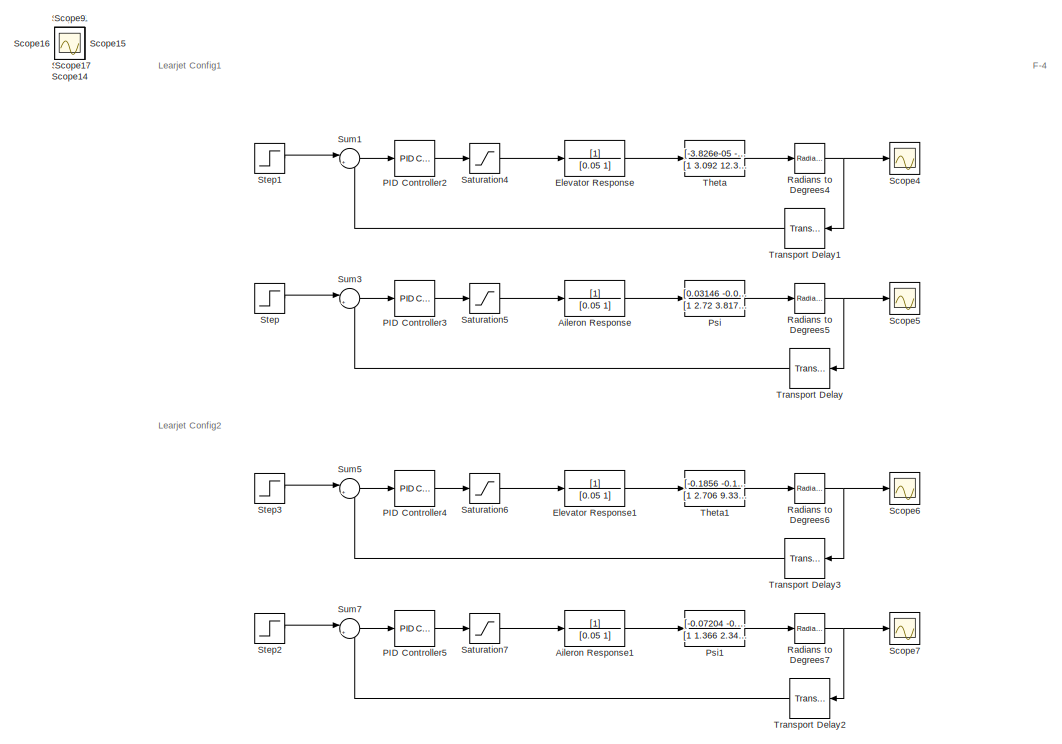
[diagram: root canvas - part 1/3, middle left region]
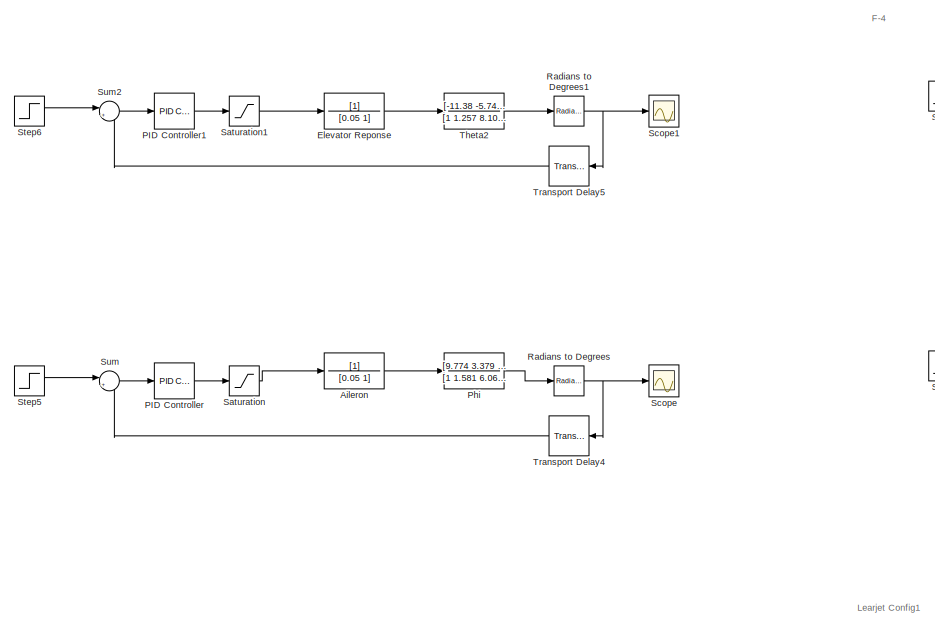
[diagram: root canvas - part 2/3, central region]
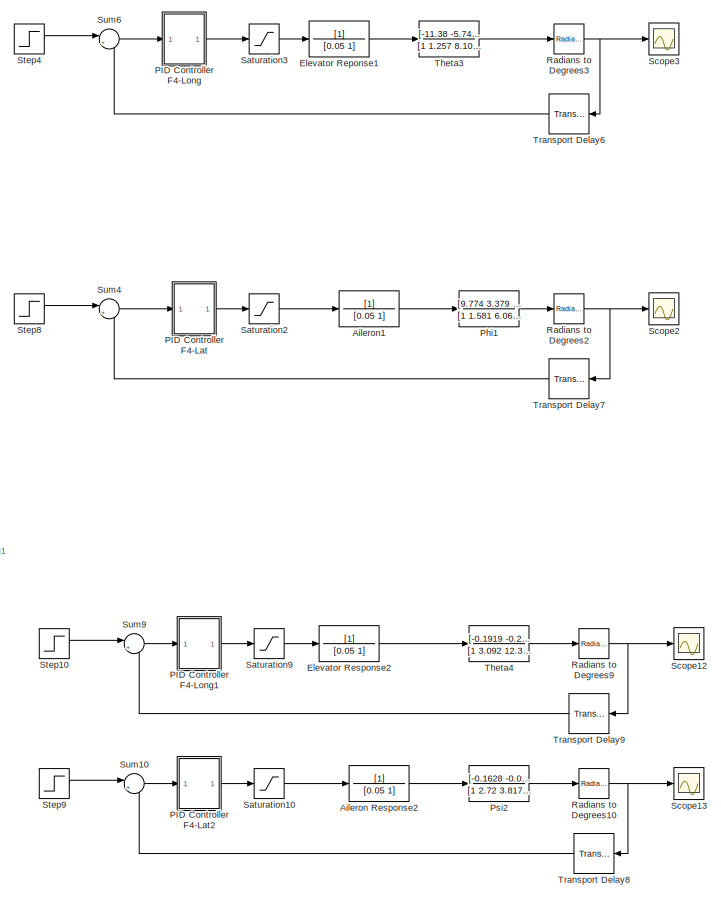
[diagram: root canvas - part 3/3, right side, full height]
MODEL slx_a774afb46f4c
KIND model
CONFIG AbsTol = auto
CONFIG EnableMultiTasking = off
CONFIG FixedStep = auto
CONFIG MaxStep = auto
CONFIG MinStep = auto
CONFIG RelTol = 1e-3
CONFIG SampleTimeConstraint = Unconstrained
CONFIG SolverName = VariableStepAuto
CONFIG StartTime = 0.0
CONFIG StopTime = 10
BLOCK [TransferFcn] Aileron
  Denominator = [0.05 1]
BLOCK [TransferFcn] Aileron Response
  Denominator = [0.05 1]
BLOCK [TransferFcn] Aileron Response1
  Denominator = [0.05 1]
BLOCK [TransferFcn] Aileron Response2
  Denominator = [0.05 1]
BLOCK [TransferFcn] Aileron1
  Denominator = [0.05 1]
BLOCK [TransferFcn] Elevator Reponse
  Denominator = [0.05 1]
BLOCK [TransferFcn] Elevator Reponse1
  Denominator = [0.05 1]
BLOCK [TransferFcn] Elevator Response
  Denominator = [0.05 1]
BLOCK [TransferFcn] Elevator Response1
  Denominator = [0.05 1]
BLOCK [TransferFcn] Elevator Response2
  Denominator = [0.05 1]
BLOCK [Reference] PID Controller  REF=slpidlib/PID Controller
  LibrarySourceBlock = simulink/Continuous/PID Controller
  SourceBlock = slpidlib/PID Controller
  SourceType = PID 1dof
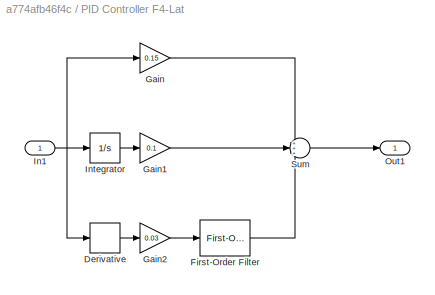
BLOCK [SubSystem] PID Controller F4-Lat
BLOCK [Derivative] PID Controller F4-Lat/Derivative
BLOCK [Reference] PID Controller F4-Lat/First-Order Filter  REF=spsFirstOrderFilterLib/First-Order
Filter
  LibrarySourceBlock = sps_lib/Control/Filters/First-Order\nFilter
  SourceBlock = spsFirstOrderFilterLib/First-Order\nFilter
  SourceType = First-Order Filter
BLOCK [Gain] PID Controller F4-Lat/Gain
  Gain = 0.15
BLOCK [Gain] PID Controller F4-Lat/Gain1
  Gain = 0.1
BLOCK [Gain] PID Controller F4-Lat/Gain2
  Gain = 0.03
BLOCK [Inport] PID Controller F4-Lat/In1
BLOCK [Integrator] PID Controller F4-Lat/Integrator
BLOCK [Outport] PID Controller F4-Lat/Out1
BLOCK [Sum] PID Controller F4-Lat/Sum
  Inputs = +++
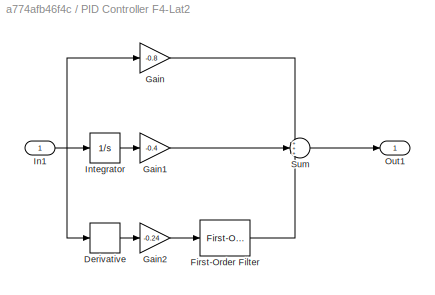
BLOCK [SubSystem] PID Controller F4-Lat2
BLOCK [Derivative] PID Controller F4-Lat2/Derivative
BLOCK [Reference] PID Controller F4-Lat2/First-Order Filter  REF=spsFirstOrderFilterLib/First-Order
Filter
  LibrarySourceBlock = sps_lib/Control/Filters/First-Order\nFilter
  SourceBlock = spsFirstOrderFilterLib/First-Order\nFilter
  SourceType = First-Order Filter
BLOCK [Gain] PID Controller F4-Lat2/Gain
  Gain = -0.8
BLOCK [Gain] PID Controller F4-Lat2/Gain1
  Gain = -0.4
BLOCK [Gain] PID Controller F4-Lat2/Gain2
  Gain = -0.24
BLOCK [Inport] PID Controller F4-Lat2/In1
BLOCK [Integrator] PID Controller F4-Lat2/Integrator
BLOCK [Outport] PID Controller F4-Lat2/Out1
BLOCK [Sum] PID Controller F4-Lat2/Sum
  Inputs = +++
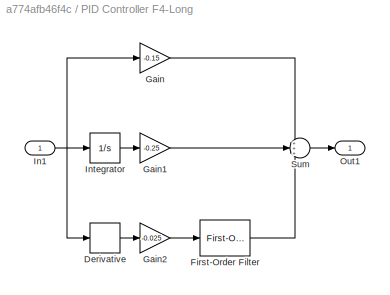
BLOCK [SubSystem] PID Controller F4-Long
BLOCK [Derivative] PID Controller F4-Long/Derivative
BLOCK [Reference] PID Controller F4-Long/First-Order Filter  REF=spsFirstOrderFilterLib/First-Order
Filter
  LibrarySourceBlock = sps_lib/Control/Filters/First-Order\nFilter
  SourceBlock = spsFirstOrderFilterLib/First-Order\nFilter
  SourceType = First-Order Filter
BLOCK [Gain] PID Controller F4-Long/Gain
  Gain = -0.15
BLOCK [Gain] PID Controller F4-Long/Gain1
  Gain = -0.25
BLOCK [Gain] PID Controller F4-Long/Gain2
  Gain = -0.025
BLOCK [Inport] PID Controller F4-Long/In1
BLOCK [Integrator] PID Controller F4-Long/Integrator
BLOCK [Outport] PID Controller F4-Long/Out1
BLOCK [Sum] PID Controller F4-Long/Sum
  Inputs = +++
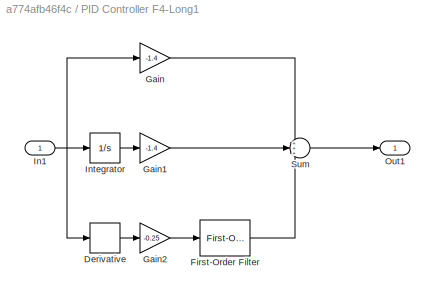
BLOCK [SubSystem] PID Controller F4-Long1
BLOCK [Derivative] PID Controller F4-Long1/Derivative
BLOCK [Reference] PID Controller F4-Long1/First-Order Filter  REF=spsFirstOrderFilterLib/First-Order
Filter
  LibrarySourceBlock = sps_lib/Control/Filters/First-Order\nFilter
  SourceBlock = spsFirstOrderFilterLib/First-Order\nFilter
  SourceType = First-Order Filter
BLOCK [Gain] PID Controller F4-Long1/Gain
  Gain = -1.4
BLOCK [Gain] PID Controller F4-Long1/Gain1
  Gain = -1.4
BLOCK [Gain] PID Controller F4-Long1/Gain2
  Gain = -0.25
BLOCK [Inport] PID Controller F4-Long1/In1
BLOCK [Integrator] PID Controller F4-Long1/Integrator
BLOCK [Outport] PID Controller F4-Long1/Out1
BLOCK [Sum] PID Controller F4-Long1/Sum
  Inputs = +++
BLOCK [Reference] PID Controller1  REF=slpidlib/PID Controller
  LibrarySourceBlock = simulink/Continuous/PID Controller
  SourceBlock = slpidlib/PID Controller
  SourceType = PID 1dof
BLOCK [Reference] PID Controller2  REF=slpidlib/PID Controller
  LibrarySourceBlock = simulink/Continuous/PID Controller
  SourceBlock = slpidlib/PID Controller
  SourceType = PID 1dof
BLOCK [Reference] PID Controller3  REF=slpidlib/PID Controller
  LibrarySourceBlock = simulink/Continuous/PID Controller
  SourceBlock = slpidlib/PID Controller
  SourceType = PID 1dof
BLOCK [Reference] PID Controller4  REF=slpidlib/PID Controller
  LibrarySourceBlock = simulink/Continuous/PID Controller
  SourceBlock = slpidlib/PID Controller
  SourceType = PID 1dof
BLOCK [Reference] PID Controller5  REF=slpidlib/PID Controller
  LibrarySourceBlock = simulink/Continuous/PID Controller
  SourceBlock = slpidlib/PID Controller
  SourceType = PID 1dof
BLOCK [TransferFcn] Phi
  Denominator = [1 1.581 6.068 7.758 0.1007]
  Numerator = [9.774 3.379 50.2]
BLOCK [TransferFcn] Phi1
  Denominator = [1 1.581 6.068 7.758 0.1007]
  Numerator = [9.774 3.379 50.2]
BLOCK [TransferFcn] Psi
  Denominator = [1 2.72 3.817 7.646 0.002118]
  Numerator = [0.03146 -0.02702 -0.2334]
BLOCK [TransferFcn] Psi1
  Denominator = [1 1.366 2.345 2.45 -0.04924]
  Numerator = [-0.07204 -0.02628 0.1395]
BLOCK [TransferFcn] Psi2
  Denominator = [1 2.72 3.817 7.646 0.002118]
  Numerator = [-0.1628 -0.08063 -0.4614]
BLOCK [Reference] Radians to Degrees  REF=simulink_extras/Transformations/Radians
to Degrees
  SourceBlock = simulink_extras/Transformations/Radians\nto Degrees
  SourceType = RadiansToDegrees
BLOCK [Reference] Radians to Degrees1  REF=simulink_extras/Transformations/Radians
to Degrees
  SourceBlock = simulink_extras/Transformations/Radians\nto Degrees
  SourceType = RadiansToDegrees
BLOCK [Reference] Radians to Degrees10  REF=simulink_extras/Transformations/Radians
to Degrees
  SourceBlock = simulink_extras/Transformations/Radians\nto Degrees
  SourceType = RadiansToDegrees
BLOCK [Reference] Radians to Degrees2  REF=simulink_extras/Transformations/Radians
to Degrees
  SourceBlock = simulink_extras/Transformations/Radians\nto Degrees
  SourceType = RadiansToDegrees
BLOCK [Reference] Radians to Degrees3  REF=simulink_extras/Transformations/Radians
to Degrees
  SourceBlock = simulink_extras/Transformations/Radians\nto Degrees
  SourceType = RadiansToDegrees
BLOCK [Reference] Radians to Degrees4  REF=simulink_extras/Transformations/Radians
to Degrees
  SourceBlock = simulink_extras/Transformations/Radians\nto Degrees
  SourceType = RadiansToDegrees
BLOCK [Reference] Radians to Degrees5  REF=simulink_extras/Transformations/Radians
to Degrees
  SourceBlock = simulink_extras/Transformations/Radians\nto Degrees
  SourceType = RadiansToDegrees
BLOCK [Reference] Radians to Degrees6  REF=simulink_extras/Transformations/Radians
to Degrees
  SourceBlock = simulink_extras/Transformations/Radians\nto Degrees
  SourceType = RadiansToDegrees
BLOCK [Reference] Radians to Degrees7  REF=simulink_extras/Transformations/Radians
to Degrees
  SourceBlock = simulink_extras/Transformations/Radians\nto Degrees
  SourceType = RadiansToDegrees
BLOCK [Reference] Radians to Degrees9  REF=simulink_extras/Transformations/Radians
to Degrees
  SourceBlock = simulink_extras/Transformations/Radians\nto Degrees
  SourceType = RadiansToDegrees
BLOCK [Saturate] Saturation
  LowerLimit = -15
  UpperLimit = 15
BLOCK [Saturate] Saturation1
  LowerLimit = -15
  UpperLimit = 15
BLOCK [Saturate] Saturation10
  LowerLimit = -15
  UpperLimit = 15
BLOCK [Saturate] Saturation2
  LowerLimit = -15
  UpperLimit = 15
BLOCK [Saturate] Saturation3
  LowerLimit = -15
  UpperLimit = 15
BLOCK [Saturate] Saturation4
  LowerLimit = -15
  UpperLimit = 15
BLOCK [Saturate] Saturation5
  LowerLimit = -15
  UpperLimit = 15
BLOCK [Saturate] Saturation6
  LowerLimit = -15
  UpperLimit = 15
BLOCK [Saturate] Saturation7
  LowerLimit = -15
  UpperLimit = 15
BLOCK [Saturate] Saturation9
  LowerLimit = -15
  UpperLimit = 15
BLOCK [Scope] Scope
  Floating = off
  NumInputPorts = 1
  ScopeSpecificationString = Simulink.scopes.TimeScopeBlockCfg('CurrentConfiguration', extmgr.ConfigurationSet(extmgr.Configuration('Core','General UI',true),extmgr.Configuration('Core','Source UI',true),extmgr.Configuration('Sources','WiredSimulink',true),extmgr.Configuration('Visuals','Time Domain',true,'SerializedDisplays',{struct('MinYLimReal','-0.13635','MaxYLimReal','1.22717','YLabelReal','','MinYLimMag','0.00000','MaxY...<+1367ch>
BLOCK [Scope] Scope1
  Floating = off
  NumInputPorts = 1
  ScopeSpecificationString = Simulink.scopes.TimeScopeBlockCfg('CurrentConfiguration', extmgr.ConfigurationSet(extmgr.Configuration('Core','General UI',true),extmgr.Configuration('Core','Source UI',true),extmgr.Configuration('Sources','WiredSimulink',true,'DataLoggingVariableName','ScopeData1'),extmgr.Configuration('Visuals','Time Domain',true,'SerializedDisplays',{struct('MinYLimReal','-0.13081','MaxYLimReal','1.17731','YLab...<+1407ch>
BLOCK [Scope] Scope10
  Floating = off
  IOType = viewer
  NumInputPorts = 1
  ScopeSpecificationString = Simulink.scopes.TimeScopeBlockCfg('CurrentConfiguration', extmgr.ConfigurationSet(extmgr.Configuration('Core','General UI',true),extmgr.Configuration('Core','Source UI',true),extmgr.Configuration('Sources','WiredSimulink',true,'DataLoggingVariableName','ScopeData2'),extmgr.Configuration('Visuals','Time Domain',true,'SerializedDisplays',{struct('MinYLimReal','-2.29931','MaxYLimReal','16.92215','YLa...<+1517ch>
BLOCK [Scope] Scope11
  Floating = off
  IOType = viewer
  NumInputPorts = 1
  ScopeSpecificationString = Simulink.scopes.TimeScopeBlockCfg('CurrentConfiguration', extmgr.ConfigurationSet(extmgr.Configuration('Core','General UI',true),extmgr.Configuration('Core','Source UI',true),extmgr.Configuration('Sources','WiredSimulink',true,'DataLoggingVariableName','ScopeData1'),extmgr.Configuration('Visuals','Time Domain',true,'SerializedDisplays',{struct('MinYLimReal','-0.1639','MaxYLimReal','0.70527','YLabe...<+1486ch>
BLOCK [Scope] Scope12
  Floating = off
  NumInputPorts = 1
  ScopeSpecificationString = Simulink.scopes.TimeScopeBlockCfg('CurrentConfiguration', extmgr.ConfigurationSet(extmgr.Configuration('Core','General UI',true),extmgr.Configuration('Core','Source UI',true),extmgr.Configuration('Sources','WiredSimulink',true,'DataLoggingVariableName','ScopeData1'),extmgr.Configuration('Visuals','Time Domain',true,'SerializedDisplays',{struct('MinYLimReal','-0.14349','MaxYLimReal','1.2914','YLabe...<+1492ch>
BLOCK [Scope] Scope13
  Floating = off
  NumInputPorts = 1
  ScopeSpecificationString = Simulink.scopes.TimeScopeBlockCfg('CurrentConfiguration', extmgr.ConfigurationSet(extmgr.Configuration('Core','General UI',true),extmgr.Configuration('Core','Source UI',true),extmgr.Configuration('Sources','WiredSimulink',true,'DataLoggingVariableName','ScopeData2'),extmgr.Configuration('Visuals','Time Domain',true,'SerializedDisplays',{struct('MinYLimReal','-0.14904','MaxYLimReal','1.34138','YLab...<+1497ch>
BLOCK [Scope] Scope14
  Floating = off
  IOType = viewer
  NumInputPorts = 1
  ScopeSpecificationString = Simulink.scopes.TimeScopeBlockCfg('CurrentConfiguration', extmgr.ConfigurationSet(extmgr.Configuration('Core','General UI',true),extmgr.Configuration('Core','Source UI',true),extmgr.Configuration('Sources','WiredSimulink',true,'DataLoggingVariableName','ScopeData3'),extmgr.Configuration('Visuals','Time Domain',true,'SerializedDisplays',{struct('MinYLimReal','-1.38233','MaxYLimReal','0.16908','YLab...<+1495ch>
BLOCK [Scope] Scope15
  Floating = off
  IOType = viewer
  NumInputPorts = 1
  ScopeSpecificationString = Simulink.scopes.TimeScopeBlockCfg('CurrentConfiguration', extmgr.ConfigurationSet(extmgr.Configuration('Core','General UI',true),extmgr.Configuration('Core','Source UI',true),extmgr.Configuration('Sources','WiredSimulink',true,'DataLoggingVariableName','ScopeData4'),extmgr.Configuration('Visuals','Time Domain',true,'SerializedDisplays',{struct('MinYLimReal','-0.80798','MaxYLimReal','0.16244','YLab...<+1494ch>
BLOCK [Scope] Scope16
  Floating = off
  IOType = viewer
  NumInputPorts = 1
  ScopeSpecificationString = Simulink.scopes.TimeScopeBlockCfg('CurrentConfiguration', extmgr.ConfigurationSet(extmgr.Configuration('Core','General UI',true),extmgr.Configuration('Core','Source UI',true),extmgr.Configuration('Sources','WiredSimulink',true,'DataLoggingVariableName','ScopeData1'),extmgr.Configuration('Visuals','Time Domain',true,'SerializedDisplays',{struct('MinYLimReal','-0.3339','MaxYLimReal','0.0559','YLabel...<+1509ch>
BLOCK [Scope] Scope17
  Floating = off
  IOType = viewer
  NumInputPorts = 1
  ScopeSpecificationString = Simulink.scopes.TimeScopeBlockCfg('CurrentConfiguration', extmgr.ConfigurationSet(extmgr.Configuration('Core','General UI',true),extmgr.Configuration('Core','Source UI',true),extmgr.Configuration('Sources','WiredSimulink',true,'DataLoggingVariableName','ScopeData2'),extmgr.Configuration('Visuals','Time Domain',true,'SerializedDisplays',{struct('MinYLimReal','-0.11599','MaxYLimReal','0.07315','YLab...<+1520ch>
BLOCK [Scope] Scope2
  Floating = off
  NumInputPorts = 1
  ScopeSpecificationString = Simulink.scopes.TimeScopeBlockCfg('CurrentConfiguration', extmgr.ConfigurationSet(extmgr.Configuration('Core','General UI',true),extmgr.Configuration('Core','Source UI',true),extmgr.Configuration('Sources','WiredSimulink',true,'DataLoggingVariableName','ScopeData2'),extmgr.Configuration('Visuals','Time Domain',true,'SerializedDisplays',{struct('MinYLimReal','-0.13629','MaxYLimReal','1.2266','YLabe...<+1538ch>
BLOCK [Scope] Scope3
  Floating = off
  NumInputPorts = 1
  ScopeSpecificationString = Simulink.scopes.TimeScopeBlockCfg('CurrentConfiguration', extmgr.ConfigurationSet(extmgr.Configuration('Core','General UI',true),extmgr.Configuration('Core','Source UI',true),extmgr.Configuration('Sources','WiredSimulink',true,'DataLoggingVariableName','ScopeData3'),extmgr.Configuration('Visuals','Time Domain',true,'SerializedDisplays',{struct('MinYLimReal','-0.14476','MaxYLimReal','1.3028','YLabe...<+1538ch>
BLOCK [Scope] Scope4
  Floating = off
  NumInputPorts = 1
  ScopeSpecificationString = Simulink.scopes.TimeScopeBlockCfg('CurrentConfiguration', extmgr.ConfigurationSet(extmgr.Configuration('Core','General UI',true),extmgr.Configuration('Core','Source UI',true),extmgr.Configuration('Sources','WiredSimulink',true,'DataLoggingVariableName','ScopeData1'),extmgr.Configuration('Visuals','Time Domain',true,'SerializedDisplays',{struct('MinYLimReal','-0.01266','MaxYLimReal','0.04646','YLab...<+1407ch>
BLOCK [Scope] Scope5
  Floating = off
  NumInputPorts = 1
  ScopeSpecificationString = Simulink.scopes.TimeScopeBlockCfg('CurrentConfiguration', extmgr.ConfigurationSet(extmgr.Configuration('Core','General UI',true),extmgr.Configuration('Core','Source UI',true),extmgr.Configuration('Sources','WiredSimulink',true,'DataLoggingVariableName','ScopeData2'),extmgr.Configuration('Visuals','Time Domain',true,'SerializedDisplays',{struct('MinYLimReal','-1.1096','MaxYLimReal','9.43025','YLabe...<+1405ch>
BLOCK [Scope] Scope6
  Floating = off
  NumInputPorts = 1
  ScopeSpecificationString = Simulink.scopes.TimeScopeBlockCfg('CurrentConfiguration', extmgr.ConfigurationSet(extmgr.Configuration('Core','General UI',true),extmgr.Configuration('Core','Source UI',true),extmgr.Configuration('Sources','WiredSimulink',true,'DataLoggingVariableName','ScopeData3'),extmgr.Configuration('Visuals','Time Domain',true,'SerializedDisplays',{struct('MinYLimReal','-179.63415','MaxYLimReal','19.95935','Y...<+1419ch>
BLOCK [Scope] Scope7
  Floating = off
  NumInputPorts = 1
  ScopeSpecificationString = Simulink.scopes.TimeScopeBlockCfg('CurrentConfiguration', extmgr.ConfigurationSet(extmgr.Configuration('Core','General UI',true),extmgr.Configuration('Core','Source UI',true),extmgr.Configuration('Sources','WiredSimulink',true,'DataLoggingVariableName','ScopeData4'),extmgr.Configuration('Visuals','Time Domain',true,'SerializedDisplays',{struct('MinYLimReal','-1.17421','MaxYLimReal','7.348','YLabel...<+1399ch>
BLOCK [Scope] Scope9
  Floating = off
  IOType = viewer
  NumInputPorts = 1
  ScopeSpecificationString = Simulink.scopes.TimeScopeBlockCfg('CurrentConfiguration', extmgr.ConfigurationSet(extmgr.Configuration('Core','General UI',true),extmgr.Configuration('Core','Source UI',true),extmgr.Configuration('Sources','WiredSimulink',true,'DataLoggingVariableName','ScopeData1'),extmgr.Configuration('Visuals','Time Domain',true,'SerializedDisplays',{struct('MinYLimReal','-16.90865','MaxYLimReal','2.17782','YLa...<+1492ch>
BLOCK [Step] Step
  After = 5
  SampleTime = 0
  Time = 5
BLOCK [Step] Step1
  SampleTime = 0
BLOCK [Step] Step10
  SampleTime = 0
BLOCK [Step] Step2
  After = 5
  SampleTime = 0
  Time = 5
BLOCK [Step] Step3
  SampleTime = 0
BLOCK [Step] Step4
  SampleTime = 0
BLOCK [Step] Step5
  SampleTime = 0
BLOCK [Step] Step6
  SampleTime = 0
BLOCK [Step] Step8
  SampleTime = 0
BLOCK [Step] Step9
  SampleTime = 0
BLOCK [Sum] Sum
  Inputs = |+-
BLOCK [Sum] Sum1
  Inputs = |+-
BLOCK [Sum] Sum10
  Inputs = |+-
BLOCK [Sum] Sum2
  Inputs = |+-
BLOCK [Sum] Sum3
  Inputs = |+-
BLOCK [Sum] Sum4
  Inputs = |+-
BLOCK [Sum] Sum5
  Inputs = |+-
BLOCK [Sum] Sum6
  Inputs = |+-
BLOCK [Sum] Sum7
  Inputs = |+-
BLOCK [Sum] Sum9
  Inputs = |+-
BLOCK [TransferFcn] Theta
  Denominator = [1 3.092 12.33 0.1023 0.1033]
  Numerator = [-3.826e-05 -2.946e-05 6.667e-06]
BLOCK [TransferFcn] Theta1
  Denominator = [1 2.706 9.332 0.072151 0.08193]
  Numerator = [-0.1856 -0.1962 0.003189]
BLOCK [TransferFcn] Theta2
  Denominator = [1 1.257 8.104 -0.009997 -0.01242]
  Numerator = [-11.38 -5.747 -0.06639]
BLOCK [TransferFcn] Theta3
  Denominator = [1 1.257 8.104 -0.009997 -0.01242]
  Numerator = [-11.38 -5.747 -0.06639]
BLOCK [TransferFcn] Theta4
  Denominator = [1 3.092 12.33 0.1023 0.1033]
  Numerator = [-0.1919 -0.2474 -0.00406]
BLOCK [TransportDelay] Transport Delay
  DelayTime = 0.005
BLOCK [TransportDelay] Transport Delay1
  DelayTime = 0.005
BLOCK [TransportDelay] Transport Delay2
  DelayTime = 0.005
BLOCK [TransportDelay] Transport Delay3
  DelayTime = 0.005
BLOCK [TransportDelay] Transport Delay4
  DelayTime = 0.005
BLOCK [TransportDelay] Transport Delay5
  DelayTime = 0.005
BLOCK [TransportDelay] Transport Delay6
  DelayTime = 0.005
BLOCK [TransportDelay] Transport Delay7
  DelayTime = 0.005
BLOCK [TransportDelay] Transport Delay8
  DelayTime = 0.005
BLOCK [TransportDelay] Transport Delay9
  DelayTime = 0.005
ANNOTATION (root): F-4
ANNOTATION (root): Learjet Config1
ANNOTATION (root): Learjet Config2
LINE Aileron Response1:1 -> Psi1:1
LINE Aileron Response2:1 -> Psi2:1
LINE Aileron Response:1 -> Psi:1
LINE Aileron1:1 -> Phi1:1
LINE Aileron:1 -> Phi:1
LINE Elevator Reponse1:1 -> Theta3:1
LINE Elevator Reponse:1 -> Theta2:1
LINE Elevator Response1:1 -> Theta1:1
LINE Elevator Response2:1 -> Theta4:1
LINE Elevator Response:1 -> Theta:1
LINE PID Controller F4-Lat/Derivative:1 -> PID Controller F4-Lat/Gain2:1
LINE PID Controller F4-Lat/First-Order Filter:1 -> PID Controller F4-Lat/Sum:3
LINE PID Controller F4-Lat/Gain1:1 -> PID Controller F4-Lat/Sum:2
LINE PID Controller F4-Lat/Gain2:1 -> PID Controller F4-Lat/First-Order Filter:1
LINE PID Controller F4-Lat/Gain:1 -> PID Controller F4-Lat/Sum:1
NET PID Controller F4-Lat/In1:1 -> PID Controller F4-Lat/Derivative:1, PID Controller F4-Lat/Gain:1, PID Controller F4-Lat/Integrator:1
LINE PID Controller F4-Lat/Integrator:1 -> PID Controller F4-Lat/Gain1:1
LINE PID Controller F4-Lat/Sum:1 -> PID Controller F4-Lat/Out1:1
LINE PID Controller F4-Lat2/Derivative:1 -> PID Controller F4-Lat2/Gain2:1
LINE PID Controller F4-Lat2/First-Order Filter:1 -> PID Controller F4-Lat2/Sum:3
LINE PID Controller F4-Lat2/Gain1:1 -> PID Controller F4-Lat2/Sum:2
LINE PID Controller F4-Lat2/Gain2:1 -> PID Controller F4-Lat2/First-Order Filter:1
LINE PID Controller F4-Lat2/Gain:1 -> PID Controller F4-Lat2/Sum:1
NET PID Controller F4-Lat2/In1:1 -> PID Controller F4-Lat2/Derivative:1, PID Controller F4-Lat2/Gain:1, PID Controller F4-Lat2/Integrator:1
LINE PID Controller F4-Lat2/Integrator:1 -> PID Controller F4-Lat2/Gain1:1
LINE PID Controller F4-Lat2/Sum:1 -> PID Controller F4-Lat2/Out1:1
LINE PID Controller F4-Lat2:1 -> Saturation10:1
LINE PID Controller F4-Lat:1 -> Saturation2:1
LINE PID Controller F4-Long/Derivative:1 -> PID Controller F4-Long/Gain2:1
LINE PID Controller F4-Long/First-Order Filter:1 -> PID Controller F4-Long/Sum:3
LINE PID Controller F4-Long/Gain1:1 -> PID Controller F4-Long/Sum:2
LINE PID Controller F4-Long/Gain2:1 -> PID Controller F4-Long/First-Order Filter:1
LINE PID Controller F4-Long/Gain:1 -> PID Controller F4-Long/Sum:1
NET PID Controller F4-Long/In1:1 -> PID Controller F4-Long/Derivative:1, PID Controller F4-Long/Gain:1, PID Controller F4-Long/Integrator:1
LINE PID Controller F4-Long/Integrator:1 -> PID Controller F4-Long/Gain1:1
LINE PID Controller F4-Long/Sum:1 -> PID Controller F4-Long/Out1:1
LINE PID Controller F4-Long1/Derivative:1 -> PID Controller F4-Long1/Gain2:1
LINE PID Controller F4-Long1/First-Order Filter:1 -> PID Controller F4-Long1/Sum:3
LINE PID Controller F4-Long1/Gain1:1 -> PID Controller F4-Long1/Sum:2
LINE PID Controller F4-Long1/Gain2:1 -> PID Controller F4-Long1/First-Order Filter:1
LINE PID Controller F4-Long1/Gain:1 -> PID Controller F4-Long1/Sum:1
NET PID Controller F4-Long1/In1:1 -> PID Controller F4-Long1/Derivative:1, PID Controller F4-Long1/Gain:1, PID Controller F4-Long1/Integrator:1
LINE PID Controller F4-Long1/Integrator:1 -> PID Controller F4-Long1/Gain1:1
LINE PID Controller F4-Long1/Sum:1 -> PID Controller F4-Long1/Out1:1
LINE PID Controller F4-Long1:1 -> Saturation9:1
LINE PID Controller F4-Long:1 -> Saturation3:1
LINE PID Controller1:1 -> Saturation1:1
LINE PID Controller2:1 -> Saturation4:1
LINE PID Controller3:1 -> Saturation5:1
LINE PID Controller4:1 -> Saturation6:1
LINE PID Controller5:1 -> Saturation7:1
LINE PID Controller:1 -> Saturation:1
LINE Phi1:1 -> Radians to Degrees2:1
LINE Phi:1 -> Radians to Degrees:1
LINE Psi1:1 -> Radians to Degrees7:1
LINE Psi2:1 -> Radians to Degrees10:1
LINE Psi:1 -> Radians to Degrees5:1
NET Radians to Degrees10:1 -> Scope13:1, Transport Delay8:1
NET Radians to Degrees1:1 -> Scope1:1, Transport Delay5:1
NET Radians to Degrees2:1 -> Scope2:1, Transport Delay7:1
NET Radians to Degrees3:1 -> Scope3:1, Transport Delay6:1
NET Radians to Degrees4:1 -> Scope4:1, Transport Delay1:1
NET Radians to Degrees5:1 -> Scope5:1, Transport Delay:1
NET Radians to Degrees6:1 -> Scope6:1, Transport Delay3:1
NET Radians to Degrees7:1 -> Scope7:1, Transport Delay2:1
NET Radians to Degrees9:1 -> Scope12:1, Transport Delay9:1
NET Radians to Degrees:1 -> Scope:1, Transport Delay4:1
LINE Saturation10:1 -> Aileron Response2:1
LINE Saturation1:1 -> Elevator Reponse:1
LINE Saturation2:1 -> Aileron1:1
LINE Saturation3:1 -> Elevator Reponse1:1
LINE Saturation4:1 -> Elevator Response:1
LINE Saturation5:1 -> Aileron Response:1
LINE Saturation6:1 -> Elevator Response1:1
LINE Saturation7:1 -> Aileron Response1:1
LINE Saturation9:1 -> Elevator Response2:1
LINE Saturation:1 -> Aileron:1
LINE Step10:1 -> Sum9:1
LINE Step1:1 -> Sum1:1
LINE Step2:1 -> Sum7:1
LINE Step3:1 -> Sum5:1
LINE Step4:1 -> Sum6:1
LINE Step5:1 -> Sum:1
LINE Step6:1 -> Sum2:1
LINE Step8:1 -> Sum4:1
LINE Step9:1 -> Sum10:1
LINE Step:1 -> Sum3:1
LINE Sum10:1 -> PID Controller F4-Lat2:1
LINE Sum1:1 -> PID Controller2:1
LINE Sum2:1 -> PID Controller1:1
LINE Sum3:1 -> PID Controller3:1
LINE Sum4:1 -> PID Controller F4-Lat:1
LINE Sum5:1 -> PID Controller4:1
LINE Sum6:1 -> PID Controller F4-Long:1
LINE Sum7:1 -> PID Controller5:1
LINE Sum9:1 -> PID Controller F4-Long1:1
LINE Sum:1 -> PID Controller:1
LINE Theta1:1 -> Radians to Degrees6:1
LINE Theta2:1 -> Radians to Degrees1:1
LINE Theta3:1 -> Radians to Degrees3:1
LINE Theta4:1 -> Radians to Degrees9:1
LINE Theta:1 -> Radians to Degrees4:1
LINE Transport Delay1:1 -> Sum1:2
LINE Transport Delay2:1 -> Sum7:2
LINE Transport Delay3:1 -> Sum5:2
LINE Transport Delay4:1 -> Sum:2
LINE Transport Delay5:1 -> Sum2:2
LINE Transport Delay6:1 -> Sum6:2
LINE Transport Delay7:1 -> Sum4:2
LINE Transport Delay8:1 -> Sum10:2
LINE Transport Delay9:1 -> Sum9:2
LINE Transport Delay:1 -> Sum3:2
note: NET lines group one-source signal fan-out (src -> all destinations, sorted); 1:1 wires keep LINE
